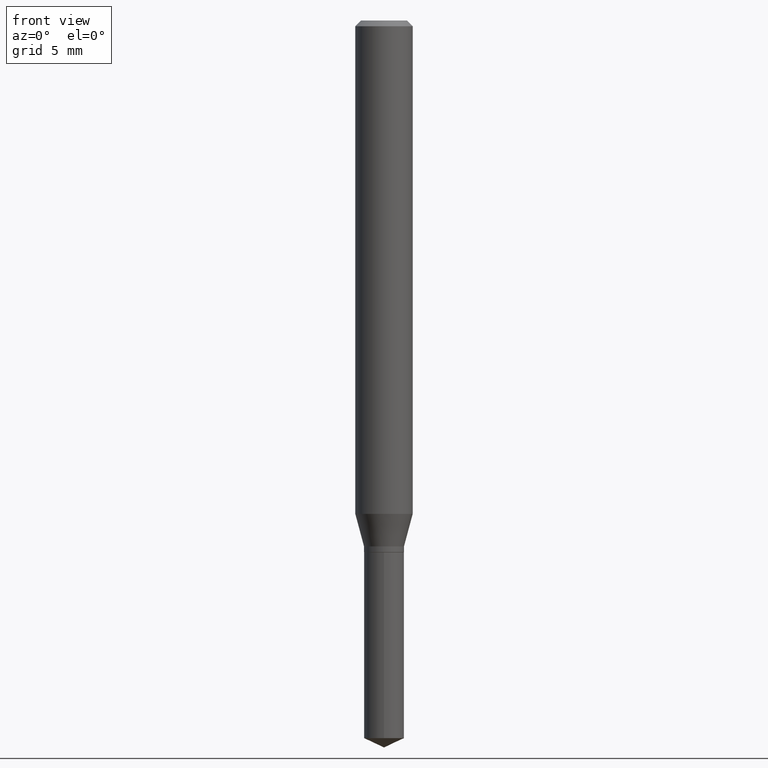
[diagram: clean part render]
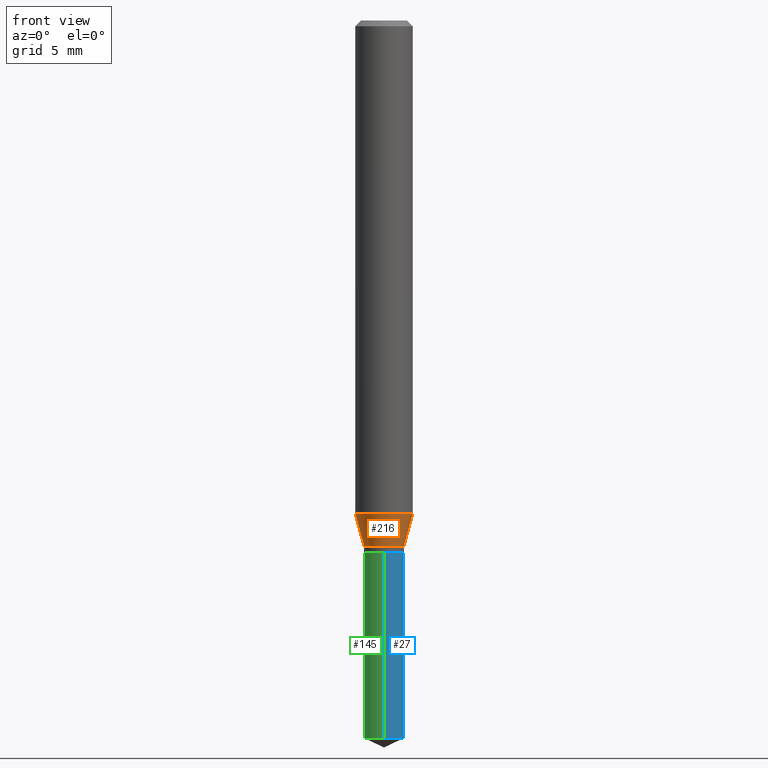
[diagram: same view with three faces highlighted in distinct colors, each labeled with its STEP entity id]
A machine part, front view with three faces highlighted in distinct colors.
Their STEP definitions:

[orange] entity #216 — the highlighted conical surface has half-angle 15 deg.
#16 = AXIS2_PLACEMENT_3D ( 'NONE', #195, #394, #48 ) ;
#17 = LINE ( 'NONE', #246, #256 ) ;
#31 = VERTEX_POINT ( 'NONE', #106 ) ;
#35 = AXIS2_PLACEMENT_3D ( 'NONE', #209, #170, #248 ) ;
#48 = DIRECTION ( 'NONE',  ( 1.000000000000000000, -6.982962677686263555E-15, 0.000000000000000000 ) ) ;
#58 = VERTEX_POINT ( 'NONE', #472 ) ;
#60 = ORIENTED_EDGE ( 'NONE', *, *, #317, .F. ) ;
#64 = CARTESIAN_POINT ( 'NONE',  ( -0.04114999999999999908, -3.486092769130770840E-15, -1.082200000000000051 ) ) ;
#66 = CARTESIAN_POINT ( 'NONE',  ( -0.05905000000000013016, -3.125661714500392772E-15, -1.015396290544516855 ) ) ;
#68 = CONICAL_SURFACE ( 'NONE', #35, 0.04114999999999999908, 0.2617993877991501295 ) ;
#90 = CARTESIAN_POINT ( 'NONE',  ( 0.04114999999999999908, -4.065830019082841950E-15, -1.082200000000000051 ) ) ;
#93 = FACE_OUTER_BOUND ( 'NONE', #351, .T. ) ;
#106 = CARTESIAN_POINT ( 'NONE',  ( 0.05905000000000013016, -3.957581146084108368E-15, -1.015396290544516855 ) ) ;
#109 = CIRCLE ( 'NONE', #16, 0.04114999999999999908 ) ;
#170 = DIRECTION ( 'NONE',  ( -2.445468806185136597E-29, 3.491481338843145583E-15, 1.000000000000000000 ) ) ;
#179 = EDGE_CURVE ( 'NONE', #58, #268, #109, .T. ) ;
#195 = CARTESIAN_POINT ( 'NONE',  ( 2.646486342053554932E-29, -3.778481104896052208E-15, -1.082200000000000051 ) ) ;
#209 = CARTESIAN_POINT ( 'NONE',  ( 2.646486342053554932E-29, -3.778481104896052208E-15, -1.082200000000000051 ) ) ;
#215 = AXIS2_PLACEMENT_3D ( 'NONE', #372, #438, #396 ) ;
#216 = ADVANCED_FACE ( 'NONE', ( #93 ), #68, .T. ) ;
#218 = EDGE_CURVE ( 'NONE', #268, #31, #17, .T. ) ;
#246 = CARTESIAN_POINT ( 'NONE',  ( 0.04114999999999999908, -4.065830019082841950E-15, -1.082200000000000051 ) ) ;
#248 = DIRECTION ( 'NONE',  ( 1.000000000000000000, -6.982962677686263555E-15, 0.000000000000000000 ) ) ;
#256 = VECTOR ( 'NONE', #478, 39.37007874015747433 ) ;
#268 = VERTEX_POINT ( 'NONE', #90 ) ;
#295 = VECTOR ( 'NONE', #374, 39.37007874015747433 ) ;
#304 = LINE ( 'NONE', #64, #295 ) ;
#317 = EDGE_CURVE ( 'NONE', #345, #31, #338, .T. ) ;
#338 = CIRCLE ( 'NONE', #215, 0.05905000000000013016 ) ;
#345 = VERTEX_POINT ( 'NONE', #66 ) ;
#351 = EDGE_LOOP ( 'NONE', ( #384, #381, #481, #60 ) ) ;
#372 = CARTESIAN_POINT ( 'NONE',  ( 2.483119954442715562E-29, -3.545237199966733054E-15, -1.015396290544516855 ) ) ;
#374 = DIRECTION ( 'NONE',  ( -0.2588190451025214611, 5.211531920934551042E-15, 0.9659258262890682012 ) ) ;
#381 = ORIENTED_EDGE ( 'NONE', *, *, #179, .T. ) ;
#384 = ORIENTED_EDGE ( 'NONE', *, *, #397, .F. ) ;
#394 = DIRECTION ( 'NONE',  ( -2.445468806185136597E-29, 3.491481338843145583E-15, 1.000000000000000000 ) ) ;
#396 = DIRECTION ( 'NONE',  ( 1.000000000000000000, -6.982962677686265133E-15, 0.000000000000000000 ) ) ;
#397 = EDGE_CURVE ( 'NONE', #58, #345, #304, .T. ) ;
#438 = DIRECTION ( 'NONE',  ( -2.445468806185136597E-29, 3.491481338843145583E-15, 1.000000000000000000 ) ) ;
#472 = CARTESIAN_POINT ( 'NONE',  ( -0.04114999999999999908, -3.506692509029945371E-15, -1.082200000000000051 ) ) ;
#478 = DIRECTION ( 'NONE',  ( 0.2588190451025214611, 1.565188264969621573E-15, 0.9659258262890682012 ) ) ;
#481 = ORIENTED_EDGE ( 'NONE', *, *, #218, .T. ) ;

[blue] entity #27 — the highlighted cylindrical surface (edge-blend (fillet) strip) has radius 1.0452 mm, axis along (-0, 0, 1).
#27 = ADVANCED_FACE ( 'NONE', ( #445 ), #253, .T. ) ;
#32 = ORIENTED_EDGE ( 'NONE', *, *, #367, .T. ) ;
#61 = DIRECTION ( 'NONE',  ( -6.982962677686265922E-15, -1.000000000000000000, 3.319377878085374529E-15 ) ) ;
#71 = DIRECTION ( 'NONE',  ( -6.982962677686265922E-15, -1.000000000000000000, 6.638755756170749059E-15 ) ) ;
#100 = LINE ( 'NONE', #487, #285 ) ;
#125 = DIRECTION ( 'NONE',  ( -2.445458899330790108E-29, 3.491495526022433599E-15, 1.000000000000000000 ) ) ;
#137 = DIRECTION ( 'NONE',  ( -2.445458899330790108E-29, 3.491495526022433205E-15, 1.000000000000000000 ) ) ;
#138 = DIRECTION ( 'NONE',  ( -2.445458899330790108E-29, 3.491495526022433205E-15, 1.000000000000000000 ) ) ;
#165 = EDGE_CURVE ( 'NONE', #174, #223, #431, .T. ) ;
#168 = CARTESIAN_POINT ( 'NONE',  ( 2.676565608369631794E-29, -3.821426325363822773E-15, -1.094499999999999806 ) ) ;
#174 = VERTEX_POINT ( 'NONE', #241 ) ;
#189 = EDGE_LOOP ( 'NONE', ( #32, #311, #312, #313 ) ) ;
#223 = VERTEX_POINT ( 'NONE', #398 ) ;
#241 = CARTESIAN_POINT ( 'NONE',  ( 2.923883357653172610E-16, 0.04114999999999483654, -1.476911439866922082 ) ) ;
#253 = CYLINDRICAL_SURFACE ( 'NONE', #435, 0.04114999999999999908 ) ;
#255 = DIRECTION ( 'NONE',  ( -2.445458899330790108E-29, 3.491495526022433599E-15, 1.000000000000000000 ) ) ;
#260 = VERTEX_POINT ( 'NONE', #479 ) ;
#285 = VECTOR ( 'NONE', #255, 39.37007874015748143 ) ;
#310 = EDGE_CURVE ( 'NONE', #412, #223, #436, .T. ) ;
#311 = ORIENTED_EDGE ( 'NONE', *, *, #165, .T. ) ;
#312 = ORIENTED_EDGE ( 'NONE', *, *, #310, .F. ) ;
#313 = ORIENTED_EDGE ( 'NONE', *, *, #336, .F. ) ;
#322 = CARTESIAN_POINT ( 'NONE',  ( 2.923883357653079426E-16, 0.04114999999999617575, -1.094500000000000028 ) ) ;
#335 = CARTESIAN_POINT ( 'NONE',  ( -2.873489141867631186E-16, -0.04115000000000382241, -1.094499999999999806 ) ) ;
#336 = EDGE_CURVE ( 'NONE', #260, #412, #100, .T. ) ;
#367 = EDGE_CURVE ( 'NONE', #260, #174, #407, .T. ) ;
#370 = CARTESIAN_POINT ( 'NONE',  ( 2.676565608369631794E-29, -3.821426325363822773E-15, -1.094499999999999806 ) ) ;
#373 = CARTESIAN_POINT ( 'NONE',  ( 3.611737067198096495E-29, -5.156614156758976833E-15, -1.476911439866921860 ) ) ;
#398 = CARTESIAN_POINT ( 'NONE',  ( 2.923883357653173103E-16, 0.04114999999999617575, -1.094500000000000028 ) ) ;
#405 = DIRECTION ( 'NONE',  ( -2.445458899330790108E-29, 3.491495526022433205E-15, 1.000000000000000000 ) ) ;
#407 = CIRCLE ( 'NONE', #423, 0.04114999999999999908 ) ;
#412 = VERTEX_POINT ( 'NONE', #335 ) ;
#423 = AXIS2_PLACEMENT_3D ( 'NONE', #373, #138, #71 ) ;
#431 = LINE ( 'NONE', #322, #450 ) ;
#435 = AXIS2_PLACEMENT_3D ( 'NONE', #370, #137, #448 ) ;
#436 = CIRCLE ( 'NONE', #474, 0.04114999999999999908 ) ;
#445 = FACE_OUTER_BOUND ( 'NONE', #189, .T. ) ;
#448 = DIRECTION ( 'NONE',  ( -6.982962677686265922E-15, -1.000000000000000000, 3.319377878085374529E-15 ) ) ;
#450 = VECTOR ( 'NONE', #125, 39.37007874015748143 ) ;
#474 = AXIS2_PLACEMENT_3D ( 'NONE', #168, #405, #61 ) ;
#479 = CARTESIAN_POINT ( 'NONE',  ( -2.873489141867537015E-16, -0.04115000000000515468, -1.476911439866921416 ) ) ;
#487 = CARTESIAN_POINT ( 'NONE',  ( -2.873489141867631186E-16, -0.04115000000000382241, -1.094499999999999806 ) ) ;

[green] entity #145 — the highlighted cylindrical surface (edge-blend (fillet) strip) has radius 1.0452 mm, axis along (-0, 0, 1).
#87 = DIRECTION ( 'NONE',  ( -6.982962677686265922E-15, -1.000000000000000000, 3.319377878085374529E-15 ) ) ;
#95 = CARTESIAN_POINT ( 'NONE',  ( 2.676565608369631794E-29, -3.821426325363822773E-15, -1.094499999999999806 ) ) ;
#97 = DIRECTION ( 'NONE',  ( -6.982962677686265922E-15, -1.000000000000000000, 3.319377878085374529E-15 ) ) ;
#100 = LINE ( 'NONE', #487, #285 ) ;
#114 = CYLINDRICAL_SURFACE ( 'NONE', #318, 0.04114999999999999908 ) ;
#121 = FACE_OUTER_BOUND ( 'NONE', #348, .T. ) ;
#125 = DIRECTION ( 'NONE',  ( -2.445458899330790108E-29, 3.491495526022433599E-15, 1.000000000000000000 ) ) ;
#145 = ADVANCED_FACE ( 'NONE', ( #121 ), #114, .T. ) ;
#151 = ORIENTED_EDGE ( 'NONE', *, *, #336, .T. ) ;
#164 = DIRECTION ( 'NONE',  ( -2.445458899330790108E-29, 3.491495526022433205E-15, 1.000000000000000000 ) ) ;
#165 = EDGE_CURVE ( 'NONE', #174, #223, #431, .T. ) ;
#174 = VERTEX_POINT ( 'NONE', #241 ) ;
#187 = EDGE_CURVE ( 'NONE', #223, #412, #391, .T. ) ;
#188 = DIRECTION ( 'NONE',  ( -6.982962677686265922E-15, -1.000000000000000000, 6.638755756170749059E-15 ) ) ;
#217 = DIRECTION ( 'NONE',  ( -2.445458899330790108E-29, 3.491495526022433205E-15, 1.000000000000000000 ) ) ;
#223 = VERTEX_POINT ( 'NONE', #398 ) ;
#241 = CARTESIAN_POINT ( 'NONE',  ( 2.923883357653172610E-16, 0.04114999999999483654, -1.476911439866922082 ) ) ;
#255 = DIRECTION ( 'NONE',  ( -2.445458899330790108E-29, 3.491495526022433599E-15, 1.000000000000000000 ) ) ;
#260 = VERTEX_POINT ( 'NONE', #479 ) ;
#285 = VECTOR ( 'NONE', #255, 39.37007874015748143 ) ;
#318 = AXIS2_PLACEMENT_3D ( 'NONE', #386, #164, #87 ) ;
#322 = CARTESIAN_POINT ( 'NONE',  ( 2.923883357653079426E-16, 0.04114999999999617575, -1.094500000000000028 ) ) ;
#327 = DIRECTION ( 'NONE',  ( -2.445458899330790108E-29, 3.491495526022433205E-15, 1.000000000000000000 ) ) ;
#335 = CARTESIAN_POINT ( 'NONE',  ( -2.873489141867631186E-16, -0.04115000000000382241, -1.094499999999999806 ) ) ;
#336 = EDGE_CURVE ( 'NONE', #260, #412, #100, .T. ) ;
#346 = AXIS2_PLACEMENT_3D ( 'NONE', #95, #327, #97 ) ;
#348 = EDGE_LOOP ( 'NONE', ( #429, #358, #151, #388 ) ) ;
#358 = ORIENTED_EDGE ( 'NONE', *, *, #452, .T. ) ;
#383 = CIRCLE ( 'NONE', #408, 0.04114999999999999908 ) ;
#386 = CARTESIAN_POINT ( 'NONE',  ( 2.676565608369631794E-29, -3.821426325363822773E-15, -1.094499999999999806 ) ) ;
#388 = ORIENTED_EDGE ( 'NONE', *, *, #187, .F. ) ;
#391 = CIRCLE ( 'NONE', #346, 0.04114999999999999908 ) ;
#398 = CARTESIAN_POINT ( 'NONE',  ( 2.923883357653173103E-16, 0.04114999999999617575, -1.094500000000000028 ) ) ;
#408 = AXIS2_PLACEMENT_3D ( 'NONE', #414, #217, #188 ) ;
#412 = VERTEX_POINT ( 'NONE', #335 ) ;
#414 = CARTESIAN_POINT ( 'NONE',  ( 3.611737067198096495E-29, -5.156614156758976833E-15, -1.476911439866921860 ) ) ;
#429 = ORIENTED_EDGE ( 'NONE', *, *, #165, .F. ) ;
#431 = LINE ( 'NONE', #322, #450 ) ;
#450 = VECTOR ( 'NONE', #125, 39.37007874015748143 ) ;
#452 = EDGE_CURVE ( 'NONE', #174, #260, #383, .T. ) ;
#479 = CARTESIAN_POINT ( 'NONE',  ( -2.873489141867537015E-16, -0.04115000000000515468, -1.476911439866921416 ) ) ;
#487 = CARTESIAN_POINT ( 'NONE',  ( -2.873489141867631186E-16, -0.04115000000000382241, -1.094499999999999806 ) ) ;